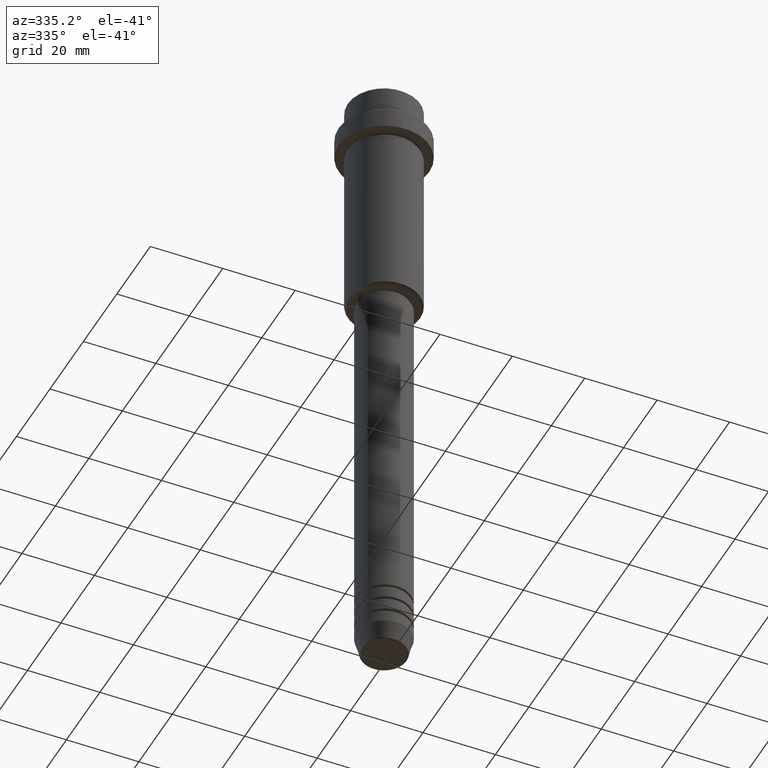
[diagram: clean part render]
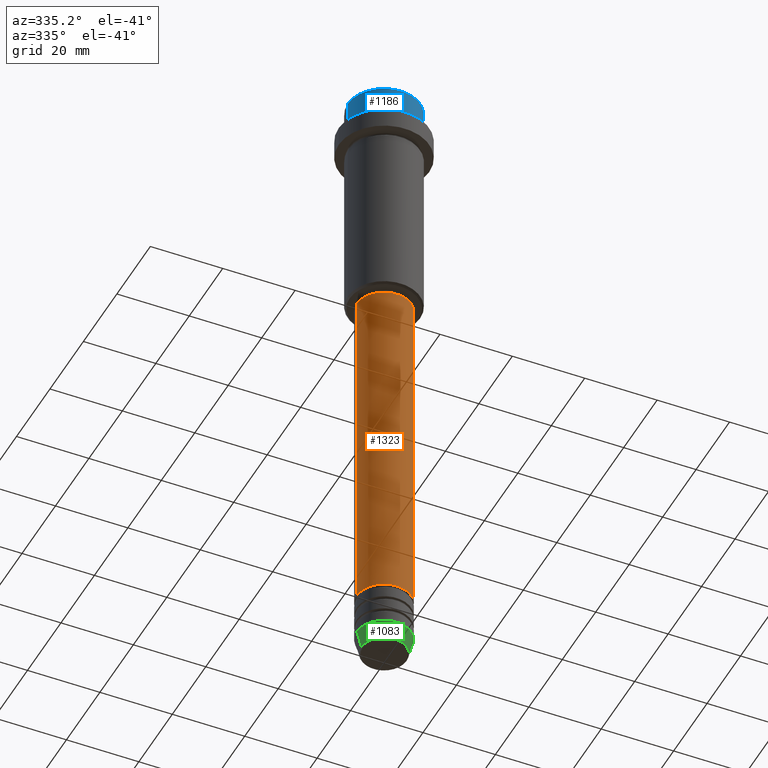
[diagram: same view with three faces highlighted in distinct colors, each labeled with its STEP entity id]
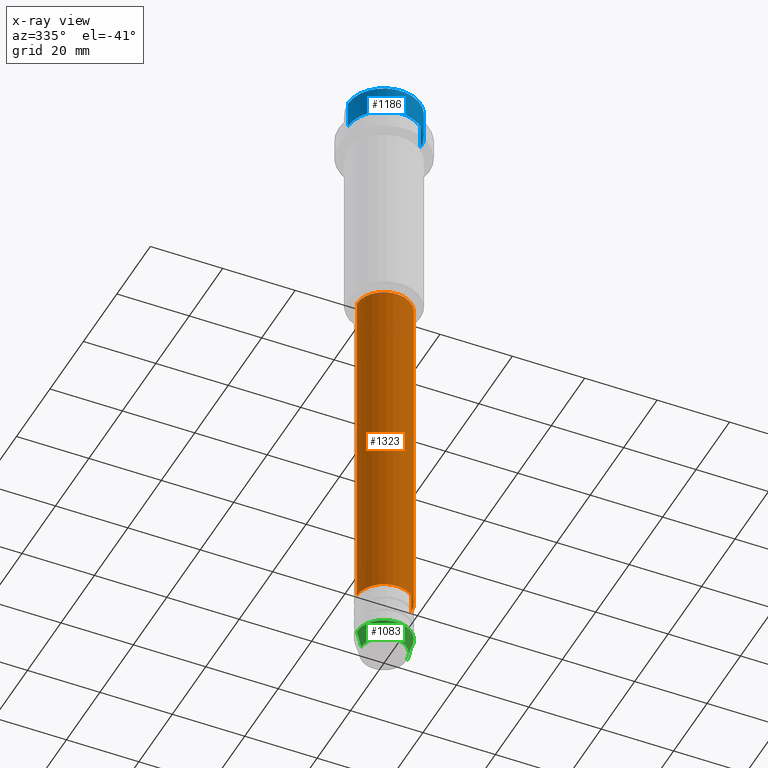
[diagram: x-ray of the same camera — body ghosted, the three highlighted faces saturated]
A machine part, auxiliary view with three faces highlighted in distinct colors.
The next image is the same camera in x-ray (body ghosted, the three faces saturated) — at least one of them is partly hidden behind the body in this view.
Their STEP definitions:

[orange] entity #1323 — the highlighted cylindrical surface (edge-blend (fillet) strip) has radius 7.5 mm, axis along (-0, -0, 1).
#101 = LINE ( 'NONE', #1311, #1003 ) ;
#113 = DIRECTION ( 'NONE',  ( -0.000000000000000000, -0.000000000000000000, 1.000000000000000000 ) ) ;
#187 = CIRCLE ( 'NONE', #1141, 7.500000000000000000 ) ;
#251 = DIRECTION ( 'NONE',  ( -0.000000000000000000, -0.000000000000000000, 1.000000000000000000 ) ) ;
#344 = ORIENTED_EDGE ( 'NONE', *, *, #831, .F. ) ;
#345 = FACE_OUTER_BOUND ( 'NONE', #354, .T. ) ;
#354 = EDGE_LOOP ( 'NONE', ( #890, #1367, #1120, #344 ) ) ;
#419 = DIRECTION ( 'NONE',  ( -0.000000000000000000, -0.000000000000000000, 1.000000000000000000 ) ) ;
#425 = CARTESIAN_POINT ( 'NONE',  ( -7.500000000000000000, 9.184850993605147944E-16, -66.00000000000000000 ) ) ;
#436 = AXIS2_PLACEMENT_3D ( 'NONE', #1221, #667, #797 ) ;
#457 = DIRECTION ( 'NONE',  ( -0.000000000000000000, -0.000000000000000000, 1.000000000000000000 ) ) ;
#583 = VERTEX_POINT ( 'NONE', #834 ) ;
#599 = VECTOR ( 'NONE', #251, 1000.000000000000000 ) ;
#622 = AXIS2_PLACEMENT_3D ( 'NONE', #1098, #113, #894 ) ;
#667 = DIRECTION ( 'NONE',  ( -0.000000000000000000, -0.000000000000000000, 1.000000000000000000 ) ) ;
#685 = CARTESIAN_POINT ( 'NONE',  ( -7.500000000000000000, 9.184850993605147944E-16, -162.9999999999998579 ) ) ;
#689 = CYLINDRICAL_SURFACE ( 'NONE', #436, 7.500000000000000000 ) ;
#691 = VERTEX_POINT ( 'NONE', #425 ) ;
#695 = CIRCLE ( 'NONE', #622, 7.500000000000000000 ) ;
#758 = EDGE_CURVE ( 'NONE', #947, #583, #695, .T. ) ;
#784 = LINE ( 'NONE', #1337, #599 ) ;
#797 = DIRECTION ( 'NONE',  ( 1.000000000000000000, 0.000000000000000000, 0.000000000000000000 ) ) ;
#798 = CARTESIAN_POINT ( 'NONE',  ( 0.000000000000000000, 0.000000000000000000, -66.00000000000000000 ) ) ;
#827 = CARTESIAN_POINT ( 'NONE',  ( 7.500000000000000000, 0.000000000000000000, -66.00000000000000000 ) ) ;
#831 = EDGE_CURVE ( 'NONE', #691, #1005, #187, .T. ) ;
#834 = CARTESIAN_POINT ( 'NONE',  ( 7.500000000000000000, 0.000000000000000000, -162.9999999999998579 ) ) ;
#890 = ORIENTED_EDGE ( 'NONE', *, *, #1160, .F. ) ;
#894 = DIRECTION ( 'NONE',  ( 1.000000000000000000, 0.000000000000000000, 0.000000000000000000 ) ) ;
#947 = VERTEX_POINT ( 'NONE', #685 ) ;
#1003 = VECTOR ( 'NONE', #419, 1000.000000000000000 ) ;
#1005 = VERTEX_POINT ( 'NONE', #827 ) ;
#1033 = DIRECTION ( 'NONE',  ( 1.000000000000000000, 0.000000000000000000, 0.000000000000000000 ) ) ;
#1098 = CARTESIAN_POINT ( 'NONE',  ( 0.000000000000000000, 0.000000000000000000, -162.9999999999998579 ) ) ;
#1120 = ORIENTED_EDGE ( 'NONE', *, *, #1318, .T. ) ;
#1141 = AXIS2_PLACEMENT_3D ( 'NONE', #798, #457, #1033 ) ;
#1160 = EDGE_CURVE ( 'NONE', #947, #691, #101, .T. ) ;
#1221 = CARTESIAN_POINT ( 'NONE',  ( 0.000000000000000000, 0.000000000000000000, 0.000000000000000000 ) ) ;
#1311 = CARTESIAN_POINT ( 'NONE',  ( -7.500000000000000000, 9.184850993605147944E-16, 0.000000000000000000 ) ) ;
#1318 = EDGE_CURVE ( 'NONE', #583, #1005, #784, .T. ) ;
#1323 = ADVANCED_FACE ( 'NONE', ( #345 ), #689, .T. ) ;
#1337 = CARTESIAN_POINT ( 'NONE',  ( 7.500000000000000000, 0.000000000000000000, 0.000000000000000000 ) ) ;
#1367 = ORIENTED_EDGE ( 'NONE', *, *, #758, .T. ) ;

[blue] entity #1186 — the highlighted cylindrical surface (partial cylindrical patch) has radius 10 mm, axis along (-0, -0, 1).
#11 = CYLINDRICAL_SURFACE ( 'NONE', #911, 9.999999999999998224 ) ;
#48 = VERTEX_POINT ( 'NONE', #1342 ) ;
#51 = DIRECTION ( 'NONE',  ( 1.000000000000000000, 0.000000000000000000, 0.000000000000000000 ) ) ;
#112 = FACE_OUTER_BOUND ( 'NONE', #131, .T. ) ;
#122 = CIRCLE ( 'NONE', #596, 9.999999999999998224 ) ;
#131 = EDGE_LOOP ( 'NONE', ( #503, #666, #264, #1411 ) ) ;
#198 = LINE ( 'NONE', #1292, #932 ) ;
#212 = DIRECTION ( 'NONE',  ( -0.000000000000000000, -0.000000000000000000, 1.000000000000000000 ) ) ;
#264 = ORIENTED_EDGE ( 'NONE', *, *, #712, .T. ) ;
#408 = VERTEX_POINT ( 'NONE', #679 ) ;
#437 = CARTESIAN_POINT ( 'NONE',  ( -9.999999999999998224, 1.224646799147353059E-15, 0.000000000000000000 ) ) ;
#503 = ORIENTED_EDGE ( 'NONE', *, *, #729, .F. ) ;
#526 = EDGE_CURVE ( 'NONE', #48, #1073, #122, .T. ) ;
#596 = AXIS2_PLACEMENT_3D ( 'NONE', #1371, #1059, #711 ) ;
#652 = AXIS2_PLACEMENT_3D ( 'NONE', #955, #1380, #51 ) ;
#666 = ORIENTED_EDGE ( 'NONE', *, *, #1060, .T. ) ;
#668 = DIRECTION ( 'NONE',  ( -0.000000000000000000, -0.000000000000000000, 1.000000000000000000 ) ) ;
#679 = CARTESIAN_POINT ( 'NONE',  ( -9.999999999999998224, 1.224646799147353059E-15, -7.999999999999998224 ) ) ;
#711 = DIRECTION ( 'NONE',  ( 1.000000000000000000, 0.000000000000000000, 0.000000000000000000 ) ) ;
#712 = EDGE_CURVE ( 'NONE', #1088, #48, #198, .T. ) ;
#729 = EDGE_CURVE ( 'NONE', #408, #1073, #1197, .T. ) ;
#753 = DIRECTION ( 'NONE',  ( 1.000000000000000000, 0.000000000000000000, 0.000000000000000000 ) ) ;
#841 = CARTESIAN_POINT ( 'NONE',  ( 9.999999999999998224, 0.000000000000000000, -7.999999999999998224 ) ) ;
#911 = AXIS2_PLACEMENT_3D ( 'NONE', #1301, #1394, #753 ) ;
#932 = VECTOR ( 'NONE', #668, 1000.000000000000000 ) ;
#955 = CARTESIAN_POINT ( 'NONE',  ( 0.000000000000000000, 0.000000000000000000, -7.999999999999998224 ) ) ;
#1059 = DIRECTION ( 'NONE',  ( 0.000000000000000000, 0.000000000000000000, -1.000000000000000000 ) ) ;
#1060 = EDGE_CURVE ( 'NONE', #408, #1088, #1144, .T. ) ;
#1073 = VERTEX_POINT ( 'NONE', #1261 ) ;
#1088 = VERTEX_POINT ( 'NONE', #841 ) ;
#1144 = CIRCLE ( 'NONE', #652, 9.999999999999998224 ) ;
#1186 = ADVANCED_FACE ( 'NONE', ( #112 ), #11, .T. ) ;
#1197 = LINE ( 'NONE', #437, #1252 ) ;
#1252 = VECTOR ( 'NONE', #212, 1000.000000000000000 ) ;
#1261 = CARTESIAN_POINT ( 'NONE',  ( -9.999999999999998224, 1.224646799147353059E-15, -0.4999999999999970024 ) ) ;
#1292 = CARTESIAN_POINT ( 'NONE',  ( 9.999999999999998224, 0.000000000000000000, 0.000000000000000000 ) ) ;
#1301 = CARTESIAN_POINT ( 'NONE',  ( 0.000000000000000000, 0.000000000000000000, 0.000000000000000000 ) ) ;
#1342 = CARTESIAN_POINT ( 'NONE',  ( 9.999999999999998224, 0.000000000000000000, -0.4999999999999970024 ) ) ;
#1371 = CARTESIAN_POINT ( 'NONE',  ( 0.000000000000000000, 0.000000000000000000, -0.4999999999999970024 ) ) ;
#1380 = DIRECTION ( 'NONE',  ( -0.000000000000000000, -0.000000000000000000, 1.000000000000000000 ) ) ;
#1394 = DIRECTION ( 'NONE',  ( -0.000000000000000000, -0.000000000000000000, 1.000000000000000000 ) ) ;
#1411 = ORIENTED_EDGE ( 'NONE', *, *, #526, .T. ) ;

[green] entity #1083 — the highlighted conical surface has half-angle 15 deg.
#69 = EDGE_CURVE ( 'NONE', #324, #507, #1372, .T. ) ;
#94 = DIRECTION ( 'NONE',  ( -0.2588190451025213501, 3.169619151431772337E-17, 0.9659258262890680902 ) ) ;
#166 = AXIS2_PLACEMENT_3D ( 'NONE', #392, #847, #1279 ) ;
#179 = FACE_OUTER_BOUND ( 'NONE', #721, .T. ) ;
#218 = CARTESIAN_POINT ( 'NONE',  ( 6.259553456999438659, 0.000000000000000000, -179.6294095225512422 ) ) ;
#249 = CARTESIAN_POINT ( 'NONE',  ( 7.500000000000000000, 0.000000000000000000, -175.0000000000000000 ) ) ;
#300 = VERTEX_POINT ( 'NONE', #218 ) ;
#324 = VERTEX_POINT ( 'NONE', #1326 ) ;
#373 = VERTEX_POINT ( 'NONE', #1359 ) ;
#392 = CARTESIAN_POINT ( 'NONE',  ( 0.000000000000000000, 0.000000000000000000, -175.0000000000000000 ) ) ;
#455 = VECTOR ( 'NONE', #94, 1000.000000000000000 ) ;
#474 = CARTESIAN_POINT ( 'NONE',  ( 7.500000000000000000, 0.000000000000000000, -175.0000000000000000 ) ) ;
#476 = CIRCLE ( 'NONE', #697, 6.259553456999438659 ) ;
#507 = VERTEX_POINT ( 'NONE', #249 ) ;
#585 = DIRECTION ( 'NONE',  ( -0.000000000000000000, -0.000000000000000000, 1.000000000000000000 ) ) ;
#608 = CARTESIAN_POINT ( 'NONE',  ( 0.000000000000000000, 0.000000000000000000, -175.0000000000000000 ) ) ;
#609 = ORIENTED_EDGE ( 'NONE', *, *, #699, .F. ) ;
#611 = LINE ( 'NONE', #474, #674 ) ;
#674 = VECTOR ( 'NONE', #1171, 1000.000000000000000 ) ;
#697 = AXIS2_PLACEMENT_3D ( 'NONE', #1011, #585, #1145 ) ;
#699 = EDGE_CURVE ( 'NONE', #373, #324, #762, .T. ) ;
#721 = EDGE_LOOP ( 'NONE', ( #609, #1109, #1180, #981 ) ) ;
#755 = CARTESIAN_POINT ( 'NONE',  ( -7.500000000000000000, 9.184850993605147944E-16, -175.0000000000000000 ) ) ;
#762 = LINE ( 'NONE', #755, #455 ) ;
#847 = DIRECTION ( 'NONE',  ( -0.000000000000000000, -0.000000000000000000, 1.000000000000000000 ) ) ;
#977 = EDGE_CURVE ( 'NONE', #300, #507, #611, .T. ) ;
#981 = ORIENTED_EDGE ( 'NONE', *, *, #69, .F. ) ;
#1011 = CARTESIAN_POINT ( 'NONE',  ( 0.000000000000000000, 0.000000000000000000, -179.6294095225512422 ) ) ;
#1061 = DIRECTION ( 'NONE',  ( 1.000000000000000000, 0.000000000000000000, 0.000000000000000000 ) ) ;
#1067 = CONICAL_SURFACE ( 'NONE', #166, 7.500000000000000000, 0.2617993877991500740 ) ;
#1083 = ADVANCED_FACE ( 'NONE', ( #179 ), #1067, .T. ) ;
#1109 = ORIENTED_EDGE ( 'NONE', *, *, #1293, .T. ) ;
#1145 = DIRECTION ( 'NONE',  ( 1.000000000000000000, 0.000000000000000000, 0.000000000000000000 ) ) ;
#1158 = AXIS2_PLACEMENT_3D ( 'NONE', #608, #1374, #1061 ) ;
#1171 = DIRECTION ( 'NONE',  ( 0.2588190451025213501, 0.000000000000000000, 0.9659258262890680902 ) ) ;
#1180 = ORIENTED_EDGE ( 'NONE', *, *, #977, .T. ) ;
#1279 = DIRECTION ( 'NONE',  ( 1.000000000000000000, 0.000000000000000000, 0.000000000000000000 ) ) ;
#1293 = EDGE_CURVE ( 'NONE', #373, #300, #476, .T. ) ;
#1326 = CARTESIAN_POINT ( 'NONE',  ( -7.500000000000000000, 9.184850993605147944E-16, -175.0000000000000000 ) ) ;
#1359 = CARTESIAN_POINT ( 'NONE',  ( -6.259553456999438659, 8.425296549405629486E-16, -179.6294095225512422 ) ) ;
#1372 = CIRCLE ( 'NONE', #1158, 7.500000000000000000 ) ;
#1374 = DIRECTION ( 'NONE',  ( -0.000000000000000000, -0.000000000000000000, 1.000000000000000000 ) ) ;